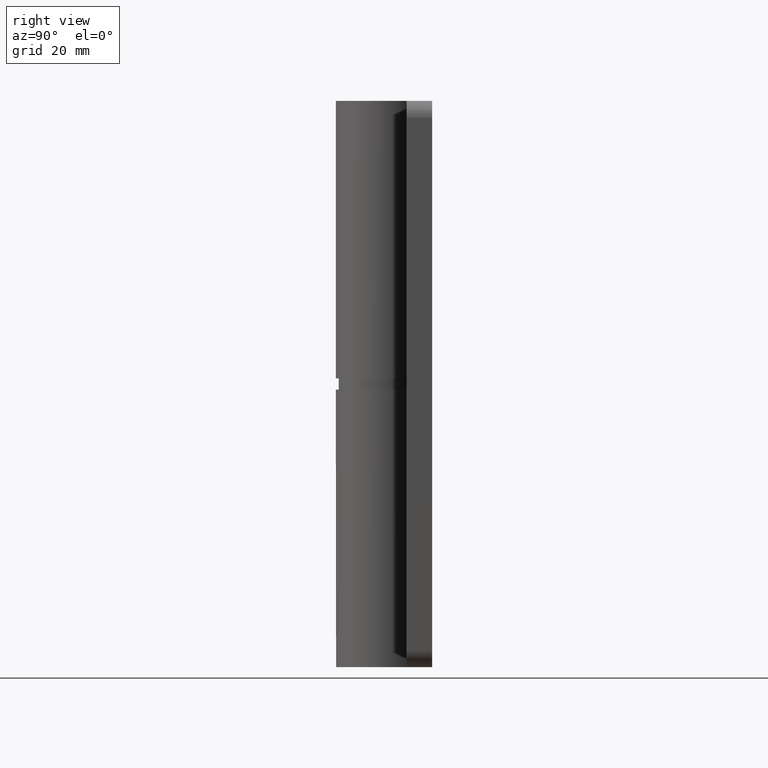
[diagram: clean part render]
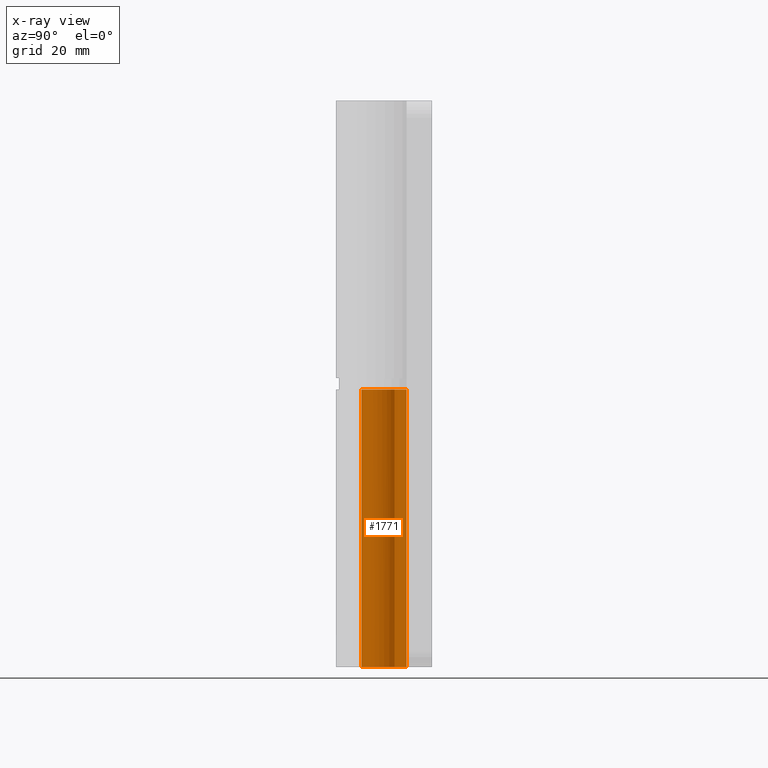
[diagram: x-ray — body ghosted, one internal face saturated and labeled with its STEP entity id]
A machine part, right view, then the same camera in x-ray: the body is ghosted and one INTERNAL B-rep face — a face not visible from any outside direction — is saturated and labeled: STEP entity #1771.
In plain terms, the highlighted face is a freeform B-spline surface patch.
Its self-contained STEP definition (entity closure, byte-faithful):
#1551=CARTESIAN_POINT('',(0.0,4.0,49.0));
#1552=VERTEX_POINT('',#1551);
#1587=CARTESIAN_POINT('',(3.541860399070690,1.858823529411770,49.0));
#1588=VERTEX_POINT('',#1587);
#1594=CARTESIAN_POINT('',(0.0,4.0,49.0));
#1595=CARTESIAN_POINT('',(-3.037419695009674,4.000000000000001,49.0));
#1596=CARTESIAN_POINT('',(-3.853077960733935,1.074146278914759,49.0));
#1597=CARTESIAN_POINT('',(-4.668736226458194,-1.851707442170482,49.0));
#1598=CARTESIAN_POINT('',(-2.069384676945412,-3.423104885746788,49.0));
#1599=CARTESIAN_POINT('',(0.529966872567371,-4.994502329323096,49.0));
#1600=CARTESIAN_POINT('',(2.741667035541867,-2.912603966594681,49.0));
#1601=CARTESIAN_POINT('',(4.953367198516363,-0.830705603866268,49.0));
#1602=CARTESIAN_POINT('',(3.541860399070689,1.858823529411767,49.0));
#1610=(BOUNDED_CURVE()B_SPLINE_CURVE(2,(#1594,#1595,#1596,#1597,#1598,#1599,#1600,#1601,#1602),.UNSPECIFIED.,.F.,.U.)B_SPLINE_CURVE_WITH_KNOTS((3,2,2,2,3),(0.0,0.250000000000000,0.500000000000000,0.750000000000000,1.0),.UNSPECIFIED.)CURVE()GEOMETRIC_REPRESENTATION_ITEM()RATIONAL_B_SPLINE_CURVE((1.0,0.796409621278111,1.0,0.796409621278111,1.0,0.796409621278111,1.0,0.796409621278111,1.0))REPRESENTATION_ITEM(''));
#1611=EDGE_CURVE('',#1552,#1588,#1610,.T.);
#1622=CARTESIAN_POINT('',(0.0,4.0,0.0));
#1623=VERTEX_POINT('',#1622);
#1629=CARTESIAN_POINT('',(3.541860399070690,1.858823529411770,0.0));
#1630=VERTEX_POINT('',#1629);
#1631=CARTESIAN_POINT('',(3.541860399070688,1.858823529411769,0.0));
#1632=CARTESIAN_POINT('',(4.953367198516363,-0.830705603866265,0.0));
#1633=CARTESIAN_POINT('',(2.741667035541869,-2.912603966594680,0.0));
#1634=CARTESIAN_POINT('',(0.529966872567374,-4.994502329323094,0.0));
#1635=CARTESIAN_POINT('',(-2.069384676945410,-3.423104885746790,0.0));
#1636=CARTESIAN_POINT('',(-4.668736226458194,-1.851707442170484,0.0));
#1637=CARTESIAN_POINT('',(-3.853077960733935,1.074146278914757,0.0));
#1638=CARTESIAN_POINT('',(-3.037419695009676,4.000000000000001,0.0));
#1639=CARTESIAN_POINT('',(0.0,4.0,0.0));
#1647=(BOUNDED_CURVE()B_SPLINE_CURVE(2,(#1631,#1632,#1633,#1634,#1635,#1636,#1637,#1638,#1639),.UNSPECIFIED.,.F.,.U.)B_SPLINE_CURVE_WITH_KNOTS((3,2,2,2,3),(0.0,0.250000000000000,0.500000000000000,0.750000000000000,1.0),.UNSPECIFIED.)CURVE()GEOMETRIC_REPRESENTATION_ITEM()RATIONAL_B_SPLINE_CURVE((1.0,0.796409621278111,1.0,0.796409621278111,1.0,0.796409621278111,1.0,0.796409621278111,1.0))REPRESENTATION_ITEM(''));
#1648=EDGE_CURVE('',#1630,#1623,#1647,.T.);
#1731=CARTESIAN_POINT('',(3.541860399070690,1.858823529411770,0.0));
#1732=CARTESIAN_POINT('',(3.541860399070690,1.858823529411770,49.0));
#1733=QUASI_UNIFORM_CURVE('',1,(#1731,#1732),.UNSPECIFIED.,.F.,.U.);
#1734=EDGE_CURVE('',#1630,#1588,#1733,.T.);
#1739=CARTESIAN_POINT('',(3.481422783759598,1.969694240413868,-1.225000000000001));
#1740=CARTESIAN_POINT('',(3.481422783759598,1.969694240413868,50.255625000000009));
#1741=CARTESIAN_POINT('',(5.885064479564393,-2.278728074113023,-1.225000000000001));
#1742=CARTESIAN_POINT('',(5.885064479564393,-2.278728074113023,50.255625000000002));
#1743=CARTESIAN_POINT('',(1.247128777398711,-3.800614399354923,-1.225000000000001));
#1744=CARTESIAN_POINT('',(1.247128777398711,-3.800614399354923,50.255625000000009));
#1745=CARTESIAN_POINT('',(-3.390806924766971,-5.322500724596824,-1.225000000000001));
#1746=CARTESIAN_POINT('',(-3.390806924766971,-5.322500724596824,50.255625000000002));
#1747=CARTESIAN_POINT('',(-3.971585821730034,-0.475926528608100,-1.225000000000001));
#1748=CARTESIAN_POINT('',(-3.971585821730034,-0.475926528608100,50.255625000000009));
#1749=CARTESIAN_POINT('',(-4.552364718693097,4.370647667380624,-1.225000000000001));
#1750=CARTESIAN_POINT('',(-4.552364718693097,4.370647667380624,50.255625000000002));
#1751=CARTESIAN_POINT('',(0.313836382911381,3.987669334932511,-1.225000000000001));
#1752=CARTESIAN_POINT('',(0.313836382911381,3.987669334932511,50.255625000000009));
#1760=(BOUNDED_SURFACE()B_SPLINE_SURFACE(1,2,((#1739,#1741,#1743,#1745,#1747,#1749,#1751),(#1740,#1742,#1744,#1746,#1748,#1750,#1752)),.UNSPECIFIED.,.F.,.F.,.U.)B_SPLINE_SURFACE_WITH_KNOTS((2,2),(3,2,2,3),(0.0,51.480625000000011),(0.0,7.574556811985905,15.149113623971809,22.723670435957722),.UNSPECIFIED.)GEOMETRIC_REPRESENTATION_ITEM()RATIONAL_B_SPLINE_SURFACE(((1.0,0.633830967398710,1.0,0.633830967398710,1.0,0.633830967398710,1.0),(1.0,0.633830967398710,1.0,0.633830967398710,1.0,0.633830967398710,1.0)))REPRESENTATION_ITEM('')SURFACE());
#1761=CARTESIAN_POINT('',(0.0,4.0,0.0));
#1762=CARTESIAN_POINT('',(0.0,4.0,49.0));
#1763=QUASI_UNIFORM_CURVE('',1,(#1761,#1762),.UNSPECIFIED.,.F.,.U.);
#1764=EDGE_CURVE('',#1623,#1552,#1763,.T.);
#1765=ORIENTED_EDGE('',*,*,#1764,.T.);
#1766=ORIENTED_EDGE('',*,*,#1611,.T.);
#1767=ORIENTED_EDGE('',*,*,#1734,.F.);
#1768=ORIENTED_EDGE('',*,*,#1648,.T.);
#1769=EDGE_LOOP('',(#1765,#1766,#1767,#1768));
#1770=FACE_OUTER_BOUND('',#1769,.T.);
#1771=ADVANCED_FACE('',(#1770),#1760,.F.);